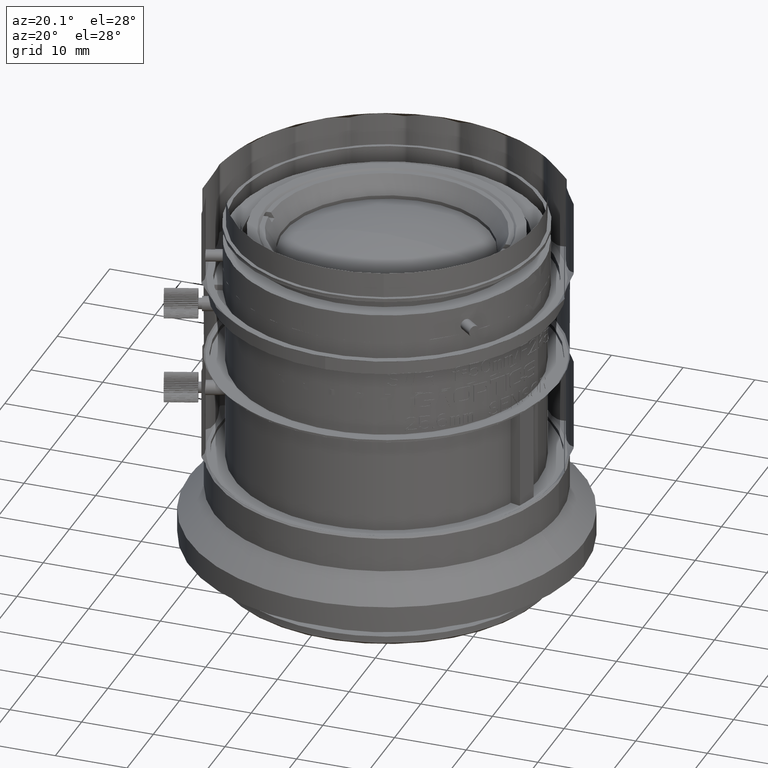
[diagram: clean part render]
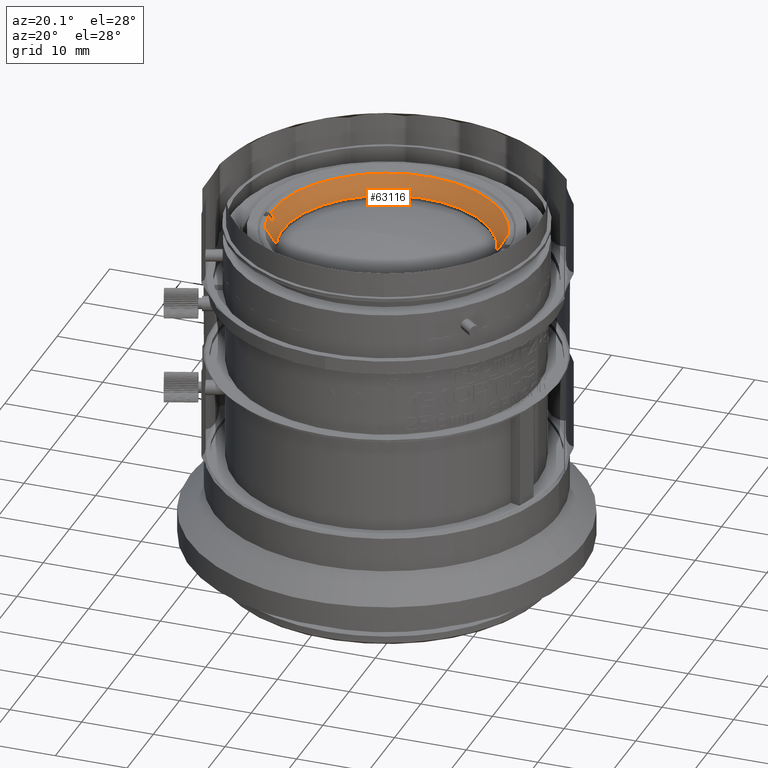
[diagram: same view with one face highlighted and labeled with its STEP entity id]
A machine part, auxiliary view. The second image highlights one B-rep face of the part: STEP entity #63116.
In plain terms, the highlighted conical surface has half-angle 30.964 deg.
Its self-contained STEP definition (entity closure, byte-faithful):
#765 = CARTESIAN_POINT ( 'NONE',  ( 8.007738589489118652, 150.2988781321170109, 7.090000000000099334 ) ) ;
#1620 = DIRECTION ( 'NONE',  ( -7.086544959932949651E-16, 1.031223859269456107E-14, -1.000000000000000000 ) ) ;
#2828 = VECTOR ( 'NONE', #46397, 1000.000000000000114 ) ;
#2919 = ORIENTED_EDGE ( 'NONE', *, *, #43028, .T. ) ;
#5091 = CIRCLE ( 'NONE', #22131, 15.51999999999669377 ) ;
#5789 = VECTOR ( 'NONE', #26176, 1000.000000000000000 ) ;
#6127 = DIRECTION ( 'NONE',  ( -1.244251022572874050E-15, -3.712005867654240054E-16, 1.000000000000000000 ) ) ;
#10001 = CARTESIAN_POINT ( 'NONE',  ( 9.961418627828527050, 146.6082814944317647, 4.839999999999980318 ) ) ;
#10735 = AXIS2_PLACEMENT_3D ( 'NONE', #97103, #56088, #87542 ) ;
#14477 = VECTOR ( 'NONE', #40717, 1000.000000000000000 ) ;
#15729 = VERTEX_POINT ( 'NONE', #37963 ) ;
#16216 = VERTEX_POINT ( 'NONE', #98385 ) ;
#16963 = DIRECTION ( 'NONE',  ( -0.4930232440872948652, -0.1470848841383860517, 0.8574929257128813820 ) ) ;
#19331 = DIRECTION ( 'NONE',  ( -0.9995163378779207131, -0.03109807574610470512, -2.168404344977705804E-16 ) ) ;
#19342 = VERTEX_POINT ( 'NONE', #105164 ) ;
#20724 = EDGE_CURVE ( 'NONE', #15729, #42880, #5091, .T. ) ;
#22107 = DIRECTION ( 'NONE',  ( 0.9582649397722444728, 0.2858816279569159624, 1.285394328204737939E-15 ) ) ;
#22131 = AXIS2_PLACEMENT_3D ( 'NONE', #79070, #6127, #22107 ) ;
#22522 = CIRCLE ( 'NONE', #41247, 15.99999999995139888 ) ;
#22668 = CONICAL_SURFACE ( 'NONE', #90654, 14.64999999999800728, 0.5404195002699272443 ) ;
#22673 = ORIENTED_EDGE ( 'NONE', *, *, #91754, .T. ) ;
#23436 = CIRCLE ( 'NONE', #82944, 14.49999999999819700 ) ;
#26176 = DIRECTION ( 'NONE',  ( -0.5135590093743979123, -0.03529164863039280231, 0.8573282005319410315 ) ) ;
#27508 = CIRCLE ( 'NONE', #80212, 15.99999999995058531 ) ;
#28348 = DIRECTION ( 'NONE',  ( -3.940158596081300389E-16, 5.970095174352860916E-15, 1.000000000000000000 ) ) ;
#28589 = FACE_OUTER_BOUND ( 'NONE', #48815, .T. ) ;
#29896 = VERTEX_POINT ( 'NONE', #31738 ) ;
#31738 = CARTESIAN_POINT ( 'NONE',  ( 39.33223903184210712, 155.3705533913094996, 7.090000000000078906 ) ) ;
#32394 = LINE ( 'NONE', #10001, #102671 ) ;
#32511 = VERTEX_POINT ( 'NONE', #90567 ) ;
#32557 = ORIENTED_EDGE ( 'NONE', *, *, #87691, .T. ) ;
#33118 = LINE ( 'NONE', #50125, #5789 ) ;
#35168 = ORIENTED_EDGE ( 'NONE', *, *, #85730, .T. ) ;
#35573 = ORIENTED_EDGE ( 'NONE', *, *, #62113, .T. ) ;
#37963 = CARTESIAN_POINT ( 'NONE',  ( 8.486956708343360134, 150.3318098831969962, 6.290000000000269154 ) ) ;
#38294 = CARTESIAN_POINT ( 'NONE',  ( 8.667760959137865484, 146.2223412966904448, 7.090000000000078018 ) ) ;
#40717 = DIRECTION ( 'NONE',  ( 0.5135590093738682249, 0.03529164863036791944, -0.8573282005322593324 ) ) ;
#41247 = AXIS2_PLACEMENT_3D ( 'NONE', #54595, #71611, #79641 ) ;
#41658 = ORIENTED_EDGE ( 'NONE', *, *, #57294, .T. ) ;
#42880 = VERTEX_POINT ( 'NONE', #82060 ) ;
#43028 = EDGE_CURVE ( 'NONE', #67159, #98247, #23436, .T. ) ;
#43829 = CARTESIAN_POINT ( 'NONE',  ( 10.10515836879432960, 146.6511637386252858, 4.589999999999667679 ) ) ;
#46397 = DIRECTION ( 'NONE',  ( 0.4930232440872940880, 0.1470848841383809169, 0.8574929257128828253 ) ) ;
#48815 = EDGE_LOOP ( 'NONE', ( #55440, #2919, #35573, #89671, #41658, #22673, #100109, #32557, #35168 ) ) ;
#50125 = CARTESIAN_POINT ( 'NONE',  ( 8.569226386210338831, 149.1346333297090325, 6.290000000000269154 ) ) ;
#51091 = CARTESIAN_POINT ( 'NONE',  ( 23.99999999549009644, 150.7964473439990059, 4.589999999999700542 ) ) ;
#53060 = DIRECTION ( 'NONE',  ( 0.9582649397722446949, 0.2858816279569155183, 1.302522746467404357E-15 ) ) ;
#53127 = EDGE_CURVE ( 'NONE', #67159, #63701, #32394, .T. ) ;
#53601 = CARTESIAN_POINT ( 'NONE',  ( 23.99999999549000052, 150.7964473440000006, 4.839999999999999858 ) ) ;
#54595 = CARTESIAN_POINT ( 'NONE',  ( 23.99999999549229912, 150.7964473439569986, 7.090000000000099334 ) ) ;
#55440 = ORIENTED_EDGE ( 'NONE', *, *, #53127, .F. ) ;
#56088 = DIRECTION ( 'NONE',  ( -7.086544959932949651E-16, 1.031223859269456107E-14, -1.000000000000000000 ) ) ;
#57294 = EDGE_CURVE ( 'NONE', #29896, #32511, #27508, .T. ) ;
#61045 = DIRECTION ( 'NONE',  ( -4.597510551354100782E-16, -3.000816275679455362E-15, 1.000000000000000000 ) ) ;
#61316 = LINE ( 'NONE', #61851, #2828 ) ;
#61851 = CARTESIAN_POINT ( 'NONE',  ( 38.03858136315147931, 154.9846131935682365, 4.840000000000018510 ) ) ;
#62113 = EDGE_CURVE ( 'NONE', #98247, #19342, #92379, .T. ) ;
#63116 = ADVANCED_FACE ( 'NONE', ( #28589 ), #22668, .F. ) ;
#63701 = VERTEX_POINT ( 'NONE', #38294 ) ;
#67159 = VERTEX_POINT ( 'NONE', #43829 ) ;
#71611 = DIRECTION ( 'NONE',  ( 3.962562177382234648E-16, -6.042102026905540589E-15, 1.000000000000000000 ) ) ;
#74094 = EDGE_CURVE ( 'NONE', #19342, #29896, #61316, .T. ) ;
#77356 = CARTESIAN_POINT ( 'NONE',  ( 23.99999999548710150, 150.7964473440449922, 7.090000000000099334 ) ) ;
#79070 = CARTESIAN_POINT ( 'NONE',  ( 23.99999999549000052, 150.7964473440000006, 6.289999999999999147 ) ) ;
#79641 = DIRECTION ( 'NONE',  ( 0.9995163378779267083, 0.03109807574590883403, -2.168404344977595610E-16 ) ) ;
#80212 = AXIS2_PLACEMENT_3D ( 'NONE', #77356, #28348, #19331 ) ;
#82060 = CARTESIAN_POINT ( 'NONE',  ( 8.569226386207288826, 149.1346333297540241, 6.290000000000269154 ) ) ;
#82944 = AXIS2_PLACEMENT_3D ( 'NONE', #51091, #1620, #84135 ) ;
#84135 = DIRECTION ( 'NONE',  ( 0.9976471278657771391, 0.06855806488784327302, 0.000000000000000000 ) ) ;
#85730 = EDGE_CURVE ( 'NONE', #16216, #63701, #22522, .T. ) ;
#87542 = DIRECTION ( 'NONE',  ( 0.9976471278657771391, 0.06855806488784327302, 0.000000000000000000 ) ) ;
#87691 = EDGE_CURVE ( 'NONE', #42880, #16216, #33118, .T. ) ;
#89671 = ORIENTED_EDGE ( 'NONE', *, *, #74094, .T. ) ;
#90567 = CARTESIAN_POINT ( 'NONE',  ( 8.007738589489708403, 150.2988781321090244, 7.090000000000099334 ) ) ;
#90654 = AXIS2_PLACEMENT_3D ( 'NONE', #53601, #61045, #53060 ) ;
#91754 = EDGE_CURVE ( 'NONE', #32511, #15729, #99259, .T. ) ;
#92379 = CIRCLE ( 'NONE', #10735, 14.49999999999819700 ) ;
#97103 = CARTESIAN_POINT ( 'NONE',  ( 23.99999999549009644, 150.7964473439990059, 4.589999999999700542 ) ) ;
#98247 = VERTEX_POINT ( 'NONE', #102185 ) ;
#98385 = CARTESIAN_POINT ( 'NONE',  ( 8.090008267353470117, 149.1017015786579805, 7.090000000000099334 ) ) ;
#99259 = LINE ( 'NONE', #765, #14477 ) ;
#100109 = ORIENTED_EDGE ( 'NONE', *, *, #20724, .T. ) ;
#102185 = CARTESIAN_POINT ( 'NONE',  ( 9.534116641439872808, 149.8023554030999946, 4.589999999999700542 ) ) ;
#102671 = VECTOR ( 'NONE', #16963, 1000.000000000000114 ) ;
#105164 = CARTESIAN_POINT ( 'NONE',  ( 37.89484162218568741, 154.9417309493747155, 4.589999999999733404 ) ) ;